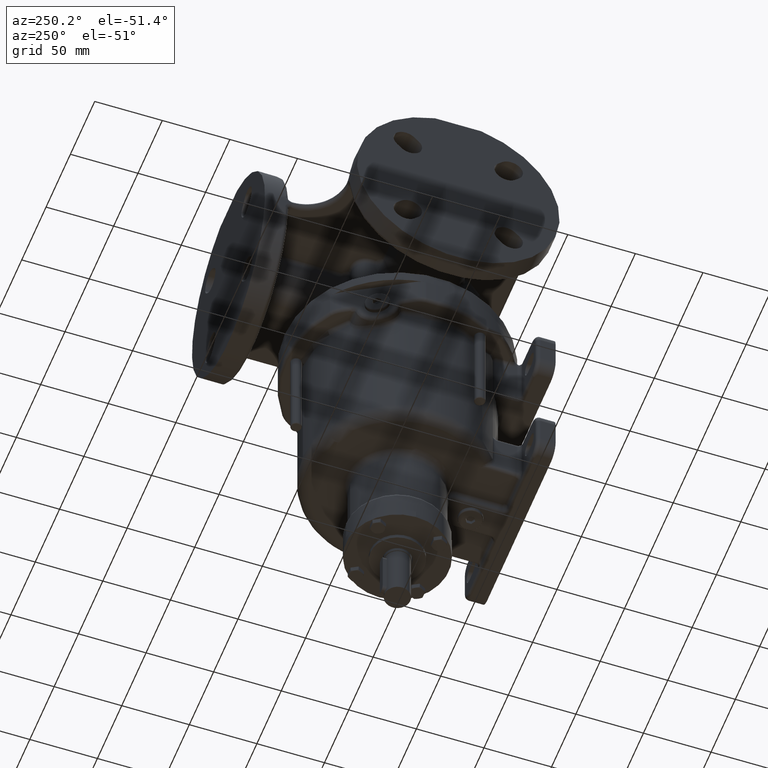
[diagram: clean part render]
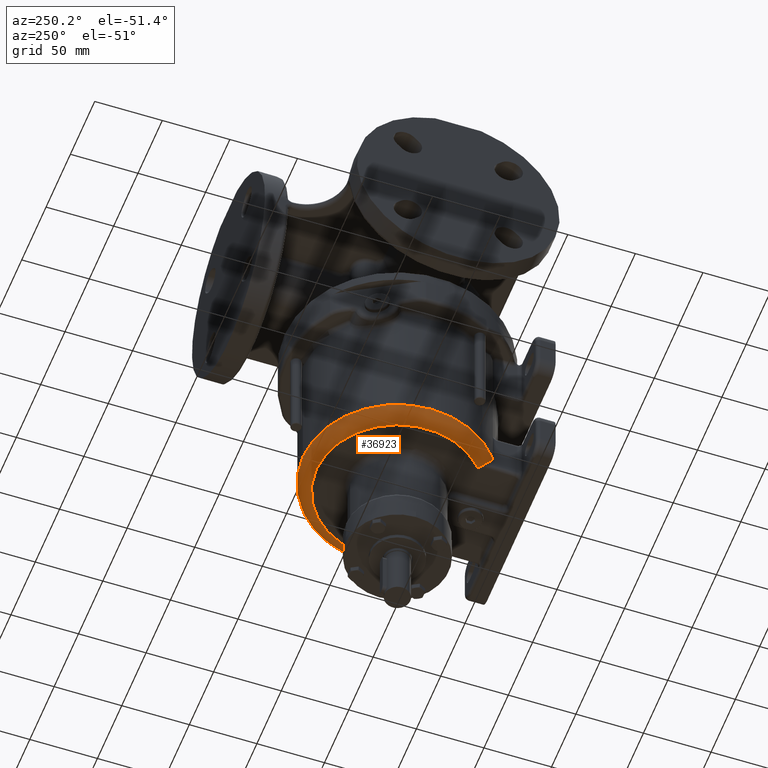
[diagram: same view with one face highlighted and labeled with its STEP entity id]
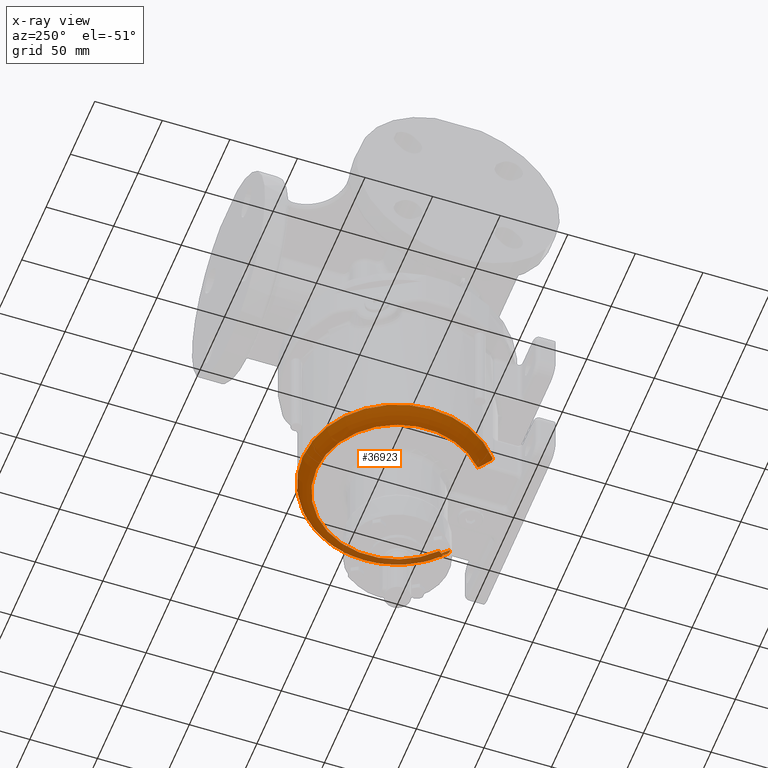
[diagram: x-ray of the same camera — body ghosted, the highlighted face saturated]
A machine part, auxiliary view. The second image highlights one B-rep face of the part: STEP entity #36923.
The next image is the same camera in x-ray: the body ghosted, the highlighted face saturated — about 10% of this face is hidden behind the body in this view.
In plain terms, the highlighted toroidal blend (fillet) surface has major radius 60 mm and minor (blend) radius 10 mm.
Its self-contained STEP definition (entity closure, byte-faithful):
#9756=CARTESIAN_POINT('',(0.E0,-1.536930732930E-14,-9.45E1));
#9757=DIRECTION('',(0.E0,0.E0,1.E0));
#9758=DIRECTION('',(0.E0,1.E0,0.E0));
#9759=AXIS2_PLACEMENT_3D('',#9756,#9757,#9758);
#10367=CARTESIAN_POINT('',(0.E0,-1.536930732930E-14,-9.45E1));
#10368=DIRECTION('',(0.E0,0.E0,-1.E0));
#10369=DIRECTION('',(0.E0,1.E0,0.E0));
#10370=AXIS2_PLACEMENT_3D('',#10367,#10368,#10369);
#11552=CARTESIAN_POINT('',(-4.387893556765E1,-5.250547625508E1,
-9.988461538462E1));
#11553=CARTESIAN_POINT('',(-4.388800376688E1,-5.242524893573E1,
-9.997185272776E1));
#11554=CARTESIAN_POINT('',(-4.390062445487E1,-5.226417066219E1,
-1.001464065698E2));
#11555=CARTESIAN_POINT('',(-4.390300143513E1,-5.202039367003E1,
-1.004078402154E2));
#11556=CARTESIAN_POINT('',(-4.388883783907E1,-5.177431853744E1,
-1.006680778330E2));
#11557=CARTESIAN_POINT('',(-4.385815960634E1,-5.152564467326E1,
-1.009264930030E2));
#11558=CARTESIAN_POINT('',(-4.381099263563E1,-5.127411596911E1,
-1.011824034012E2));
#11559=CARTESIAN_POINT('',(-4.374737419127E1,-5.101949202209E1,
-1.014351013987E2));
#11560=CARTESIAN_POINT('',(-4.366735628292E1,-5.076154849722E1,
-1.016838518770E2));
#11561=CARTESIAN_POINT('',(-4.357101431397E1,-5.050008403635E1,
-1.019278853203E2));
#11562=CARTESIAN_POINT('',(-4.345845438442E1,-5.023492042899E1,
-1.021663986680E2));
#11563=CARTESIAN_POINT('',(-4.332982236090E1,-4.996590661342E1,
-1.023985537189E2));
#11564=CARTESIAN_POINT('',(-4.318531306845E1,-4.969292122007E1,
-1.026234783761E2));
#11565=CARTESIAN_POINT('',(-4.302518011229E1,-4.941587585731E1,
-1.028402687092E2));
#11566=CARTESIAN_POINT('',(-4.284974584862E1,-4.913471821323E1,
-1.030479927915E2));
#11567=CARTESIAN_POINT('',(-4.265941140986E1,-4.884943527110E1,
-1.032456960959E2));
#11568=CARTESIAN_POINT('',(-4.245466642790E1,-4.856005638070E1,
-1.034324086884E2));
#11569=CARTESIAN_POINT('',(-4.223609818934E1,-4.826665617837E1,
-1.036071541997E2));
#11570=CARTESIAN_POINT('',(-4.200439981963E1,-4.796935717618E1,
-1.037689606191E2));
#11571=CARTESIAN_POINT('',(-4.176037719042E1,-4.766833199318E1,
-1.039168728178E2));
#11572=CARTESIAN_POINT('',(-4.150495380099E1,-4.736380470500E1,
-1.040499668045E2));
#11573=CARTESIAN_POINT('',(-4.123917414477E1,-4.705605224367E1,
-1.041673651452E2));
#11574=CARTESIAN_POINT('',(-4.096420238083E1,-4.674540259912E1,
-1.042682540987E2));
#11575=CARTESIAN_POINT('',(-4.068132306253E1,-4.643223757332E1,
-1.043519001951E2));
#11576=CARTESIAN_POINT('',(-4.039192540177E1,-4.611698021999E1,
-1.044176691228E2));
#11577=CARTESIAN_POINT('',(-4.009751579936E1,-4.580011489209E1,
-1.044650412364E2));
#11578=CARTESIAN_POINT('',(-3.979963852994E1,-4.548211308379E1,
-1.044936274508E2));
#11579=CARTESIAN_POINT('',(-3.959995496539E1,-4.526983447237E1,
-1.044999996913E2));
#11580=CARTESIAN_POINT('',(-3.95E1,-4.516359153123E1,-1.045E2));
#11582=CARTESIAN_POINT('',(0.E0,-1.659395412845E-14,-1.045E2));
#11583=DIRECTION('',(0.E0,0.E0,-1.E0));
#11584=DIRECTION('',(-6.583333333333E-1,-7.527265255205E-1,0.E0));
#11585=AXIS2_PLACEMENT_3D('',#11582,#11583,#11584);
#11587=CARTESIAN_POINT('',(3.95E1,-4.516359153123E1,-1.045E2));
#11588=CARTESIAN_POINT('',(3.959995514074E1,-4.526983466467E1,
-1.044999996983E2));
#11589=CARTESIAN_POINT('',(3.979963901846E1,-4.548211359970E1,
-1.044936274371E2));
#11590=CARTESIAN_POINT('',(4.009751727849E1,-4.580011647791E1,
-1.044650410530E2));
#11591=CARTESIAN_POINT('',(4.039192635694E1,-4.611698125462E1,
-1.044176689255E2));
#11592=CARTESIAN_POINT('',(4.068132391117E1,-4.643223850428E1,
-1.043518999762E2));
#11593=CARTESIAN_POINT('',(4.096420332488E1,-4.674540365257E1,
-1.042682537895E2));
#11594=CARTESIAN_POINT('',(4.123917524315E1,-4.705605349671E1,
-1.041673647080E2));
#11595=CARTESIAN_POINT('',(4.150495517819E1,-4.736380631818E1,
-1.040499661519E2));
#11596=CARTESIAN_POINT('',(4.176037888732E1,-4.766833404453E1,
-1.039168718742E2));
#11597=CARTESIAN_POINT('',(4.200440186877E1,-4.796935974507E1,
-1.037689592985E2));
#11598=CARTESIAN_POINT('',(4.223610058971E1,-4.826665931580E1,
-1.036071524212E2));
#11599=CARTESIAN_POINT('',(4.245466915416E1,-4.856006011750E1,
-1.034324063789E2));
#11600=CARTESIAN_POINT('',(4.265941441951E1,-4.884943962532E1,
-1.032456931896E2));
#11601=CARTESIAN_POINT('',(4.284974908168E1,-4.913472318666E1,
-1.030479892354E2));
#11602=CARTESIAN_POINT('',(4.302518349404E1,-4.941588143630E1,
-1.028402644660E2));
#11603=CARTESIAN_POINT('',(4.318531651981E1,-4.969292738784E1,
-1.026234734177E2));
#11604=CARTESIAN_POINT('',(4.332982579251E1,-4.996591333799E1,
-1.023985480365E2));
#11605=CARTESIAN_POINT('',(4.345845770165E1,-5.023492766444E1,
-1.021663922750E2));
#11606=CARTESIAN_POINT('',(4.357101743122E1,-5.050009175364E1,
-1.019278782237E2));
#11607=CARTESIAN_POINT('',(4.366735910034E1,-5.076155661068E1,
-1.016838441482E2));
#11608=CARTESIAN_POINT('',(4.374737664950E1,-5.101950057130E1,
-1.014350929965E2));
#11609=CARTESIAN_POINT('',(4.381099460652E1,-5.127412468193E1,
-1.011823946041E2));
#11610=CARTESIAN_POINT('',(4.385816109463E1,-5.152565382086E1,
-1.009264835530E2));
#11611=CARTESIAN_POINT('',(4.388883870513E1,-5.177432769204E1,
-1.006680681913E2));
#11612=CARTESIAN_POINT('',(4.390300168501E1,-5.202040215925E1,
-1.004078311205E2));
#11613=CARTESIAN_POINT('',(4.390062405736E1,-5.226417795671E1,
-1.001463986865E2));
#11614=CARTESIAN_POINT('',(4.388800343538E1,-5.242525178378E1,
-9.997184963894E1));
#11615=CARTESIAN_POINT('',(4.387893556765E1,-5.250547625508E1,
-9.988461538462E1));
#11617=CARTESIAN_POINT('',(4.387893556765E1,-5.250547625508E1,
-9.988461538462E1));
#11618=CARTESIAN_POINT('',(4.386772504867E1,-5.260465849134E1,
-9.977676664815E1));
#11619=CARTESIAN_POINT('',(4.384619600767E1,-5.279549737796E1,
-9.955971963080E1));
#11620=CARTESIAN_POINT('',(4.381654729531E1,-5.305927612482E1,
-9.923136446460E1));
#11621=CARTESIAN_POINT('',(4.378941044655E1,-5.330150905670E1,
-9.890048872169E1));
#11622=CARTESIAN_POINT('',(4.376469086064E1,-5.352285087760E1,
-9.856755692445E1));
#11623=CARTESIAN_POINT('',(4.374229111737E1,-5.372399007472E1,
-9.823289030790E1));
#11624=CARTESIAN_POINT('',(4.372212611425E1,-5.390553240124E1,
-9.789680832282E1));
#11625=CARTESIAN_POINT('',(4.370411666866E1,-5.406804897348E1,
-9.755956727324E1));
#11626=CARTESIAN_POINT('',(4.368819208470E1,-5.421205392129E1,
-9.722139500417E1));
#11627=CARTESIAN_POINT('',(4.367428903358E1,-5.433801213428E1,
-9.688248095567E1));
#11628=CARTESIAN_POINT('',(4.366235186307E1,-5.444633525040E1,
-9.654298486317E1));
#11629=CARTESIAN_POINT('',(4.365233248222E1,-5.453738140152E1,
-9.620304096983E1));
#11630=CARTESIAN_POINT('',(4.364419015771E1,-5.461145570409E1,
-9.586275602861E1));
#11631=CARTESIAN_POINT('',(4.363789188346E1,-5.466880676812E1,
-9.552222663564E1));
#11632=CARTESIAN_POINT('',(4.363341162154E1,-5.470963079923E1,
-9.518152245878E1));
#11633=CARTESIAN_POINT('',(4.363073113608E1,-5.473406688433E1,
-9.484069880485E1));
#11634=CARTESIAN_POINT('',(4.363013701423E1,-5.473948429238E1,
-9.461350895937E1));
#11635=CARTESIAN_POINT('',(4.363013698630E1,-5.473948434683E1,-9.45E1));
#11637=CARTESIAN_POINT('',(-4.363013698630E1,-5.473948434683E1,-9.45E1));
#11638=CARTESIAN_POINT('',(-4.363013700905E1,-5.473948430243E1,
-9.461351940940E1));
#11639=CARTESIAN_POINT('',(-4.363073123150E1,-5.473406581439E1,
-9.484072479528E1));
#11640=CARTESIAN_POINT('',(-4.363341190786E1,-5.470962826789E1,
-9.518154822368E1));
#11641=CARTESIAN_POINT('',(-4.363789224144E1,-5.466880328686E1,
-9.552225096001E1));
#11642=CARTESIAN_POINT('',(-4.364419069875E1,-5.461145098248E1,
-9.586278031741E1));
#11643=CARTESIAN_POINT('',(-4.365233311419E1,-5.453737588782E1,
-9.620306351022E1));
#11644=CARTESIAN_POINT('',(-4.366235261946E1,-5.444632880869E1,
-9.654300663639E1));
#11645=CARTESIAN_POINT('',(-4.367428987687E1,-5.433800501422E1,
-9.688250137425E1));
#11646=CARTESIAN_POINT('',(-4.368819300957E1,-5.421204614756E1,
-9.722141430851E1));
#11647=CARTESIAN_POINT('',(-4.370411763736E1,-5.406804081183E1,
-9.755958509301E1));
#11648=CARTESIAN_POINT('',(-4.372212713117E1,-5.390552377868E1,
-9.789682504641E1));
#11649=CARTESIAN_POINT('',(-4.374229210288E1,-5.372398154021E1,
-9.823290516761E1));
#11650=CARTESIAN_POINT('',(-4.376469186439E1,-5.352284216869E1,
-9.856757060224E1));
#11651=CARTESIAN_POINT('',(-4.378941134767E1,-5.330150069143E1,
-9.890050071498E1));
#11652=CARTESIAN_POINT('',(-4.381654812714E1,-5.305926857060E1,
-9.923137417379E1));
#11653=CARTESIAN_POINT('',(-4.384619625761E1,-5.279549494193E1,
-9.955972238663E1));
#11654=CARTESIAN_POINT('',(-4.386772514519E1,-5.260465773369E1,
-9.977676745454E1));
#11655=CARTESIAN_POINT('',(-4.387893556765E1,-5.250547625508E1,
-9.988461538462E1));
#11702=CARTESIAN_POINT('',(3.95E1,-4.516359153123E1,-1.045E2));
#16279=VERTEX_POINT('',#11552);
#16280=VERTEX_POINT('',#11580);
#16282=VERTEX_POINT('',#11637);
#16297=CARTESIAN_POINT('',(4.363013698630E1,-5.473948434683E1,-9.45E1));
#16298=VERTEX_POINT('',#16297);
#16301=VERTEX_POINT('',#11617);
#16303=VERTEX_POINT('',#11702);
#16328=CARTESIAN_POINT('',(0.E0,7.E1,-9.45E1));
#16329=VERTEX_POINT('',#16328);
#36904=CARTESIAN_POINT('',(0.E0,-1.536930732930E-14,-9.45E1));
#36905=DIRECTION('',(0.E0,0.E0,1.E0));
#36906=DIRECTION('',(0.E0,1.E0,0.E0));
#36907=AXIS2_PLACEMENT_3D('',#36904,#36905,#36906);
#36908=TOROIDAL_SURFACE('',#36907,6.E1,1.E1);
#36910=ORIENTED_EDGE('',*,*,#36909,.T.);
#36912=ORIENTED_EDGE('',*,*,#36911,.T.);
#36914=ORIENTED_EDGE('',*,*,#36913,.T.);
#36916=ORIENTED_EDGE('',*,*,#36915,.T.);
#36917=ORIENTED_EDGE('',*,*,#34557,.F.);
#36918=ORIENTED_EDGE('',*,*,#33309,.T.);
#36920=ORIENTED_EDGE('',*,*,#36919,.T.);
#36921=EDGE_LOOP('',(#36910,#36912,#36914,#36916,#36917,#36918,#36920));
#36922=FACE_OUTER_BOUND('',#36921,.F.);
#36923=ADVANCED_FACE('',(#36922),#36908,.T.);
#9760=CIRCLE('',#9759,7.E1);
#10371=CIRCLE('',#10370,7.E1);
#11581=B_SPLINE_CURVE_WITH_KNOTS('',3,(#11552,#11553,#11554,#11555,#11556,
#11557,#11558,#11559,#11560,#11561,#11562,#11563,#11564,#11565,#11566,#11567,
#11568,#11569,#11570,#11571,#11572,#11573,#11574,#11575,#11576,#11577,#11578,
#11579,#11580),.UNSPECIFIED.,.F.,.F.,(4,1,1,1,1,1,1,1,1,1,1,1,1,1,1,1,1,1,1,1,1,
1,1,1,1,1,4),(0.E0,3.846153846154E-2,7.692307692308E-2,1.153846153846E-1,
1.538461538462E-1,1.923076923077E-1,2.307692307692E-1,2.692307692308E-1,
3.076923076923E-1,3.461538461538E-1,3.846153846154E-1,4.230769230769E-1,
4.615384615385E-1,5.E-1,5.384615384615E-1,5.769230769231E-1,6.153846153846E-1,
6.538461538462E-1,6.923076923077E-1,7.307692307692E-1,7.692307692308E-1,
8.076923076923E-1,8.461538461538E-1,8.846153846154E-1,9.230769230769E-1,
9.615384615385E-1,1.E0),.UNSPECIFIED.);
#11586=CIRCLE('',#11585,6.E1);
#11616=B_SPLINE_CURVE_WITH_KNOTS('',3,(#11587,#11588,#11589,#11590,#11591,
#11592,#11593,#11594,#11595,#11596,#11597,#11598,#11599,#11600,#11601,#11602,
#11603,#11604,#11605,#11606,#11607,#11608,#11609,#11610,#11611,#11612,#11613,
#11614,#11615),.UNSPECIFIED.,.F.,.F.,(4,1,1,1,1,1,1,1,1,1,1,1,1,1,1,1,1,1,1,1,1,
1,1,1,1,1,4),(0.E0,3.846153846154E-2,7.692307692308E-2,1.153846153846E-1,
1.538461538462E-1,1.923076923077E-1,2.307692307692E-1,2.692307692308E-1,
3.076923076923E-1,3.461538461538E-1,3.846153846154E-1,4.230769230769E-1,
4.615384615385E-1,5.E-1,5.384615384615E-1,5.769230769231E-1,6.153846153846E-1,
6.538461538462E-1,6.923076923077E-1,7.307692307692E-1,7.692307692308E-1,
8.076923076923E-1,8.461538461538E-1,8.846153846154E-1,9.230769230769E-1,
9.615384615385E-1,1.E0),.UNSPECIFIED.);
#11636=B_SPLINE_CURVE_WITH_KNOTS('',3,(#11617,#11618,#11619,#11620,#11621,
#11622,#11623,#11624,#11625,#11626,#11627,#11628,#11629,#11630,#11631,#11632,
#11633,#11634,#11635),.UNSPECIFIED.,.F.,.F.,(4,1,1,1,1,1,1,1,1,1,1,1,1,1,1,1,4),
(0.E0,6.25E-2,1.25E-1,1.875E-1,2.5E-1,3.125E-1,3.75E-1,4.375E-1,5.E-1,5.625E-1,
6.25E-1,6.875E-1,7.5E-1,8.125E-1,8.75E-1,9.375E-1,1.E0),.UNSPECIFIED.);
#11656=B_SPLINE_CURVE_WITH_KNOTS('',3,(#11637,#11638,#11639,#11640,#11641,
#11642,#11643,#11644,#11645,#11646,#11647,#11648,#11649,#11650,#11651,#11652,
#11653,#11654,#11655),.UNSPECIFIED.,.F.,.F.,(4,1,1,1,1,1,1,1,1,1,1,1,1,1,1,1,4),
(0.E0,6.25E-2,1.25E-1,1.875E-1,2.5E-1,3.125E-1,3.75E-1,4.375E-1,5.E-1,5.625E-1,
6.25E-1,6.875E-1,7.5E-1,8.125E-1,8.75E-1,9.375E-1,1.E0),.UNSPECIFIED.);
#33309=EDGE_CURVE('',#16329,#16282,#9760,.T.);
#34557=EDGE_CURVE('',#16329,#16298,#10371,.T.);
#36909=EDGE_CURVE('',#16279,#16280,#11581,.T.);
#36911=EDGE_CURVE('',#16280,#16303,#11586,.T.);
#36913=EDGE_CURVE('',#16303,#16301,#11616,.T.);
#36915=EDGE_CURVE('',#16301,#16298,#11636,.T.);
#36919=EDGE_CURVE('',#16282,#16279,#11656,.T.);